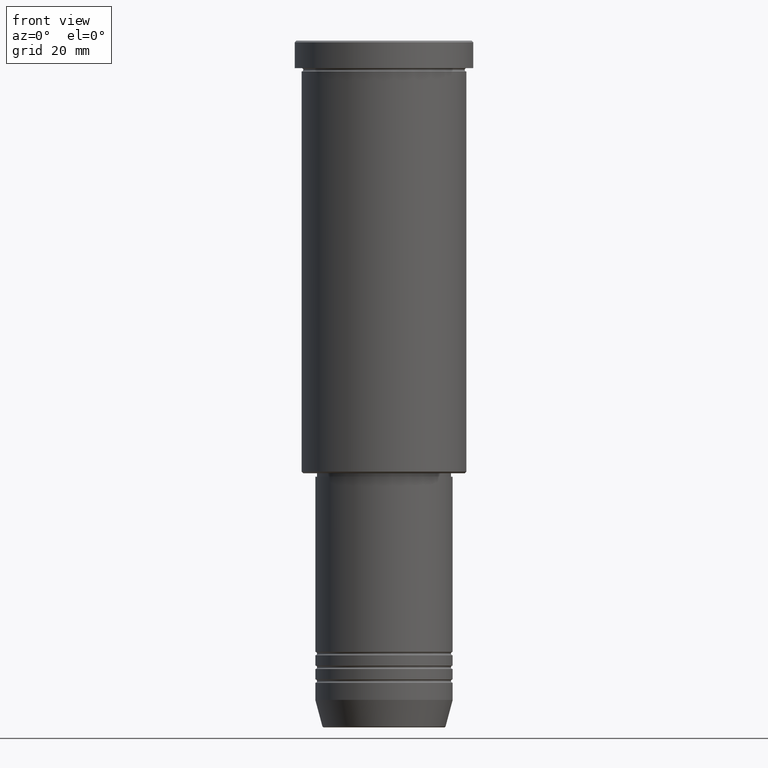
[diagram: clean part render]
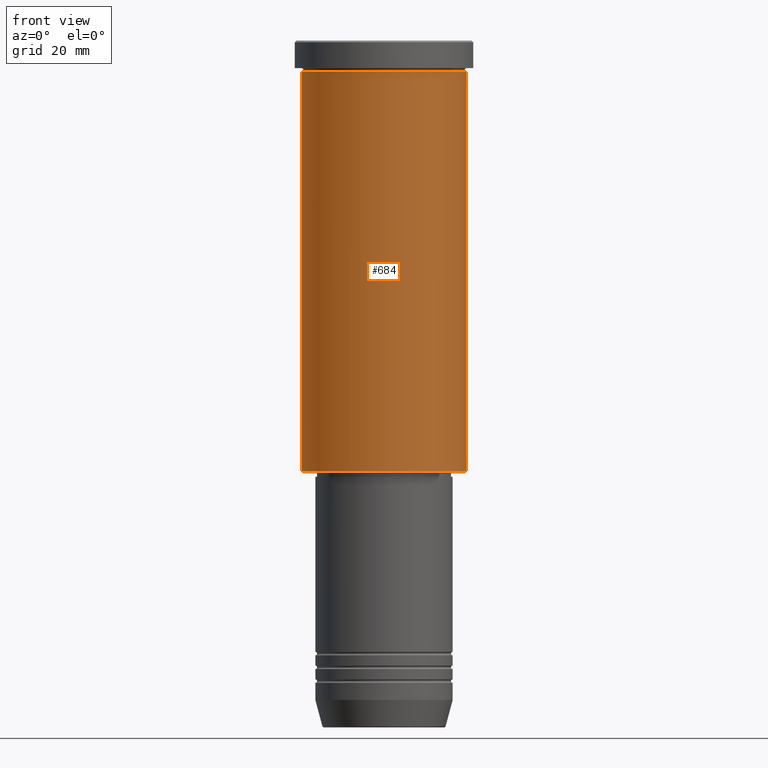
[diagram: same view with one face highlighted and labeled with its STEP entity id]
A machine part, front view. The second image highlights one B-rep face of the part: STEP entity #684.
In plain terms, the highlighted cylindrical surface (partial cylindrical patch) has radius 24 mm, axis along (-0, -0, 1).
Its self-contained STEP definition (entity closure, byte-faithful):
#50 = AXIS2_PLACEMENT_3D ( 'NONE', #549, #833, #1116 ) ;
#60 = DIRECTION ( 'NONE',  ( -1.000000000000000000, 0.000000000000000000, 0.000000000000000000 ) ) ;
#79 = EDGE_LOOP ( 'NONE', ( #421, #275, #333, #953 ) ) ;
#81 = EDGE_CURVE ( 'NONE', #257, #411, #630, .T. ) ;
#132 = CARTESIAN_POINT ( 'NONE',  ( 0.000000000000000000, 0.000000000000000000, -125.5000000000000000 ) ) ;
#242 = VECTOR ( 'NONE', #943, 1000.000000000000000 ) ;
#257 = VERTEX_POINT ( 'NONE', #689 ) ;
#275 = ORIENTED_EDGE ( 'NONE', *, *, #277, .T. ) ;
#277 = EDGE_CURVE ( 'NONE', #1152, #615, #405, .T. ) ;
#278 = DIRECTION ( 'NONE',  ( 1.000000000000000000, 0.000000000000000000, 0.000000000000000000 ) ) ;
#308 = LINE ( 'NONE', #315, #242 ) ;
#315 = CARTESIAN_POINT ( 'NONE',  ( -24.00000000000000000, 2.939152317953647894E-15, 0.000000000000000000 ) ) ;
#333 = ORIENTED_EDGE ( 'NONE', *, *, #824, .T. ) ;
#355 = LINE ( 'NONE', #445, #1044 ) ;
#405 = CIRCLE ( 'NONE', #970, 24.00000000000000000 ) ;
#411 = VERTEX_POINT ( 'NONE', #525 ) ;
#420 = CARTESIAN_POINT ( 'NONE',  ( 0.000000000000000000, 0.000000000000000000, 0.000000000000000000 ) ) ;
#421 = ORIENTED_EDGE ( 'NONE', *, *, #489, .F. ) ;
#445 = CARTESIAN_POINT ( 'NONE',  ( 24.00000000000000000, 0.000000000000000000, 0.000000000000000000 ) ) ;
#489 = EDGE_CURVE ( 'NONE', #1152, #257, #308, .T. ) ;
#525 = CARTESIAN_POINT ( 'NONE',  ( 24.00000000000000000, 0.000000000000000000, -8.999999999999994671 ) ) ;
#549 = CARTESIAN_POINT ( 'NONE',  ( 0.000000000000000000, 0.000000000000000000, -8.999999999999994671 ) ) ;
#615 = VERTEX_POINT ( 'NONE', #1018 ) ;
#630 = CIRCLE ( 'NONE', #50, 24.00000000000000000 ) ;
#684 = ADVANCED_FACE ( 'NONE', ( #976 ), #1079, .T. ) ;
#689 = CARTESIAN_POINT ( 'NONE',  ( -24.00000000000000000, 2.939152317953647894E-15, -8.999999999999994671 ) ) ;
#758 = AXIS2_PLACEMENT_3D ( 'NONE', #420, #983, #278 ) ;
#824 = EDGE_CURVE ( 'NONE', #615, #411, #355, .T. ) ;
#833 = DIRECTION ( 'NONE',  ( -0.000000000000000000, -0.000000000000000000, 1.000000000000000000 ) ) ;
#940 = CARTESIAN_POINT ( 'NONE',  ( -24.00000000000000000, 2.939152317953647894E-15, -125.5000000000000000 ) ) ;
#943 = DIRECTION ( 'NONE',  ( -0.000000000000000000, -0.000000000000000000, 1.000000000000000000 ) ) ;
#953 = ORIENTED_EDGE ( 'NONE', *, *, #81, .F. ) ;
#970 = AXIS2_PLACEMENT_3D ( 'NONE', #132, #972, #60 ) ;
#972 = DIRECTION ( 'NONE',  ( -0.000000000000000000, -0.000000000000000000, 1.000000000000000000 ) ) ;
#976 = FACE_OUTER_BOUND ( 'NONE', #79, .T. ) ;
#983 = DIRECTION ( 'NONE',  ( -0.000000000000000000, -0.000000000000000000, 1.000000000000000000 ) ) ;
#1003 = DIRECTION ( 'NONE',  ( -0.000000000000000000, -0.000000000000000000, 1.000000000000000000 ) ) ;
#1018 = CARTESIAN_POINT ( 'NONE',  ( 24.00000000000000000, 0.000000000000000000, -125.5000000000000000 ) ) ;
#1044 = VECTOR ( 'NONE', #1003, 1000.000000000000000 ) ;
#1079 = CYLINDRICAL_SURFACE ( 'NONE', #758, 24.00000000000000000 ) ;
#1116 = DIRECTION ( 'NONE',  ( 1.000000000000000000, 0.000000000000000000, 0.000000000000000000 ) ) ;
#1152 = VERTEX_POINT ( 'NONE', #940 ) ;